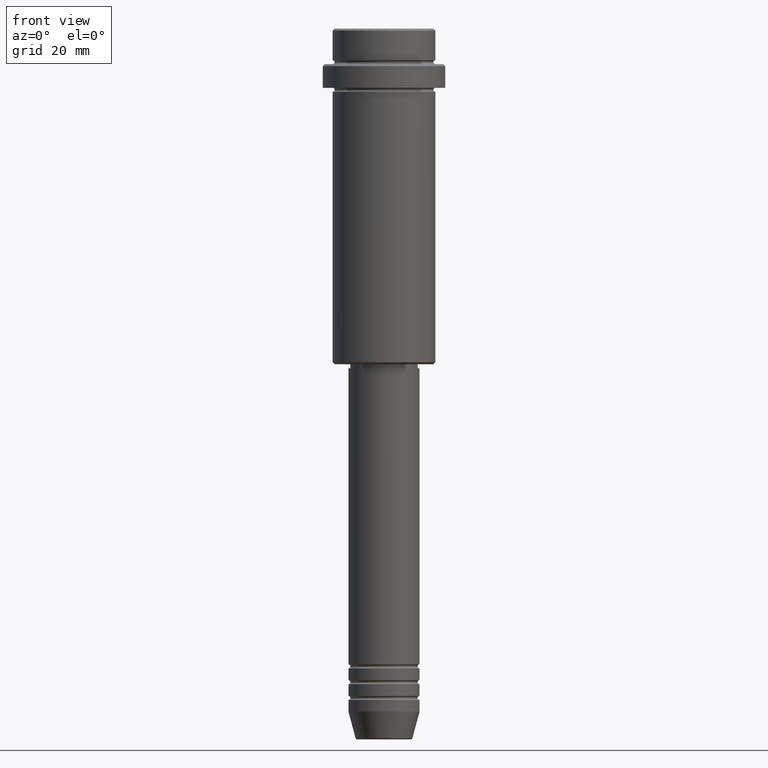
[diagram: clean part render]
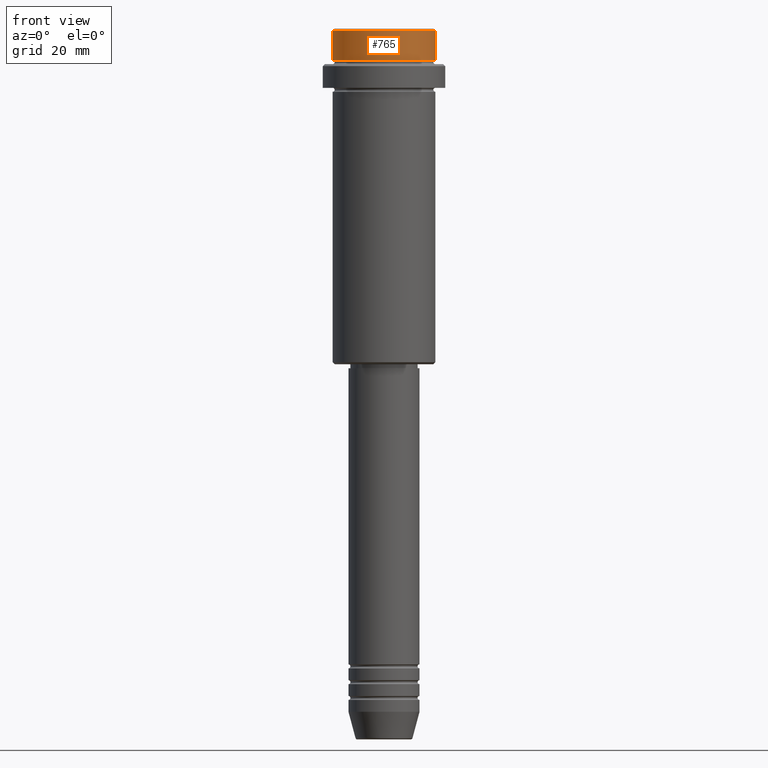
[diagram: same view with one face highlighted and labeled with its STEP entity id]
A machine part, front view. The second image highlights one B-rep face of the part: STEP entity #765.
In plain terms, the highlighted cylindrical surface (partial cylindrical patch) has radius 13 mm, axis along (-0, -0, 1).
Its self-contained STEP definition (entity closure, byte-faithful):
#21 = AXIS2_PLACEMENT_3D ( 'NONE', #91, #750, #110 ) ;
#91 = CARTESIAN_POINT ( 'NONE',  ( 0.000000000000000000, 0.000000000000000000, -7.999999999999998224 ) ) ;
#97 = CIRCLE ( 'NONE', #21, 12.99999999999999822 ) ;
#110 = DIRECTION ( 'NONE',  ( 1.000000000000000000, 0.000000000000000000, 0.000000000000000000 ) ) ;
#216 = DIRECTION ( 'NONE',  ( -0.000000000000000000, -0.000000000000000000, 1.000000000000000000 ) ) ;
#233 = CARTESIAN_POINT ( 'NONE',  ( 12.99999999999999822, 0.000000000000000000, 0.000000000000000000 ) ) ;
#255 = CARTESIAN_POINT ( 'NONE',  ( -12.99999999999999822, 1.592040838891558898E-15, 0.000000000000000000 ) ) ;
#344 = VERTEX_POINT ( 'NONE', #916 ) ;
#364 = DIRECTION ( 'NONE',  ( 1.000000000000000000, 0.000000000000000000, 0.000000000000000000 ) ) ;
#386 = VERTEX_POINT ( 'NONE', #842 ) ;
#402 = EDGE_LOOP ( 'NONE', ( #454, #1061, #619, #1274 ) ) ;
#434 = CYLINDRICAL_SURFACE ( 'NONE', #751, 12.99999999999999822 ) ;
#454 = ORIENTED_EDGE ( 'NONE', *, *, #562, .F. ) ;
#494 = VECTOR ( 'NONE', #770, 1000.000000000000000 ) ;
#501 = VECTOR ( 'NONE', #785, 1000.000000000000000 ) ;
#562 = EDGE_CURVE ( 'NONE', #1122, #344, #581, .T. ) ;
#563 = EDGE_CURVE ( 'NONE', #386, #344, #971, .T. ) ;
#581 = LINE ( 'NONE', #255, #501 ) ;
#619 = ORIENTED_EDGE ( 'NONE', *, *, #783, .T. ) ;
#750 = DIRECTION ( 'NONE',  ( -0.000000000000000000, -0.000000000000000000, 1.000000000000000000 ) ) ;
#751 = AXIS2_PLACEMENT_3D ( 'NONE', #877, #216, #861 ) ;
#765 = ADVANCED_FACE ( 'NONE', ( #1304 ), #434, .T. ) ;
#770 = DIRECTION ( 'NONE',  ( -0.000000000000000000, -0.000000000000000000, 1.000000000000000000 ) ) ;
#783 = EDGE_CURVE ( 'NONE', #1334, #386, #952, .T. ) ;
#785 = DIRECTION ( 'NONE',  ( -0.000000000000000000, -0.000000000000000000, 1.000000000000000000 ) ) ;
#792 = CARTESIAN_POINT ( 'NONE',  ( 0.000000000000000000, 0.000000000000000000, -0.5000000000000038858 ) ) ;
#842 = CARTESIAN_POINT ( 'NONE',  ( 12.99999999999999822, 0.000000000000000000, -0.5000000000000038858 ) ) ;
#861 = DIRECTION ( 'NONE',  ( 1.000000000000000000, 0.000000000000000000, 0.000000000000000000 ) ) ;
#877 = CARTESIAN_POINT ( 'NONE',  ( 0.000000000000000000, 0.000000000000000000, 0.000000000000000000 ) ) ;
#900 = CARTESIAN_POINT ( 'NONE',  ( -12.99999999999999822, 1.592040838891558898E-15, -7.999999999999998224 ) ) ;
#916 = CARTESIAN_POINT ( 'NONE',  ( -12.99999999999999822, 1.592040838891558898E-15, -0.5000000000000038858 ) ) ;
#952 = LINE ( 'NONE', #233, #494 ) ;
#971 = CIRCLE ( 'NONE', #1234, 12.99999999999999822 ) ;
#1061 = ORIENTED_EDGE ( 'NONE', *, *, #1086, .T. ) ;
#1086 = EDGE_CURVE ( 'NONE', #1122, #1334, #97, .T. ) ;
#1122 = VERTEX_POINT ( 'NONE', #900 ) ;
#1224 = DIRECTION ( 'NONE',  ( 0.000000000000000000, 0.000000000000000000, -1.000000000000000000 ) ) ;
#1234 = AXIS2_PLACEMENT_3D ( 'NONE', #792, #1224, #364 ) ;
#1274 = ORIENTED_EDGE ( 'NONE', *, *, #563, .T. ) ;
#1304 = FACE_OUTER_BOUND ( 'NONE', #402, .T. ) ;
#1334 = VERTEX_POINT ( 'NONE', #1377 ) ;
#1377 = CARTESIAN_POINT ( 'NONE',  ( 12.99999999999999822, 0.000000000000000000, -7.999999999999998224 ) ) ;